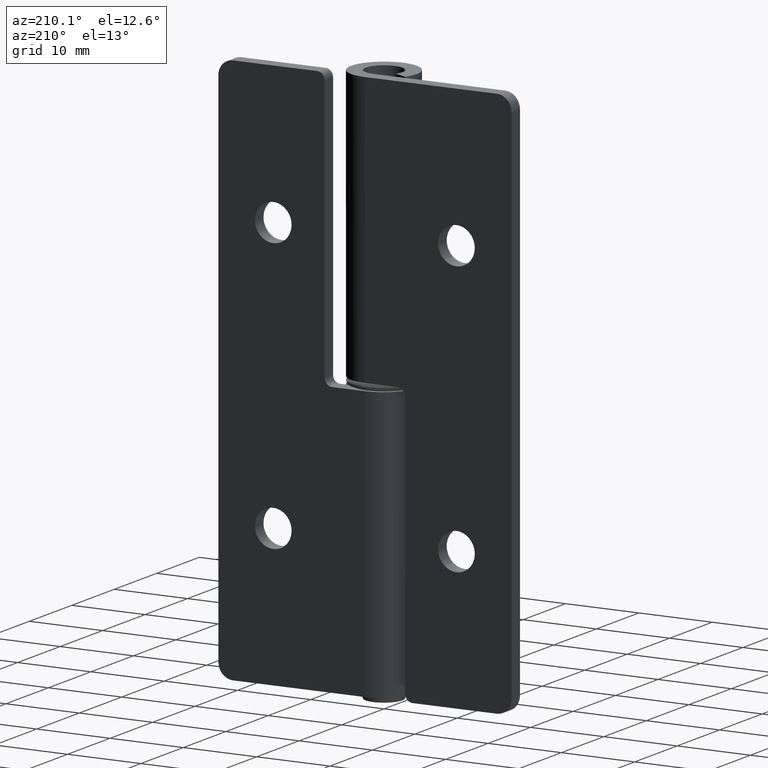
[diagram: clean part render]
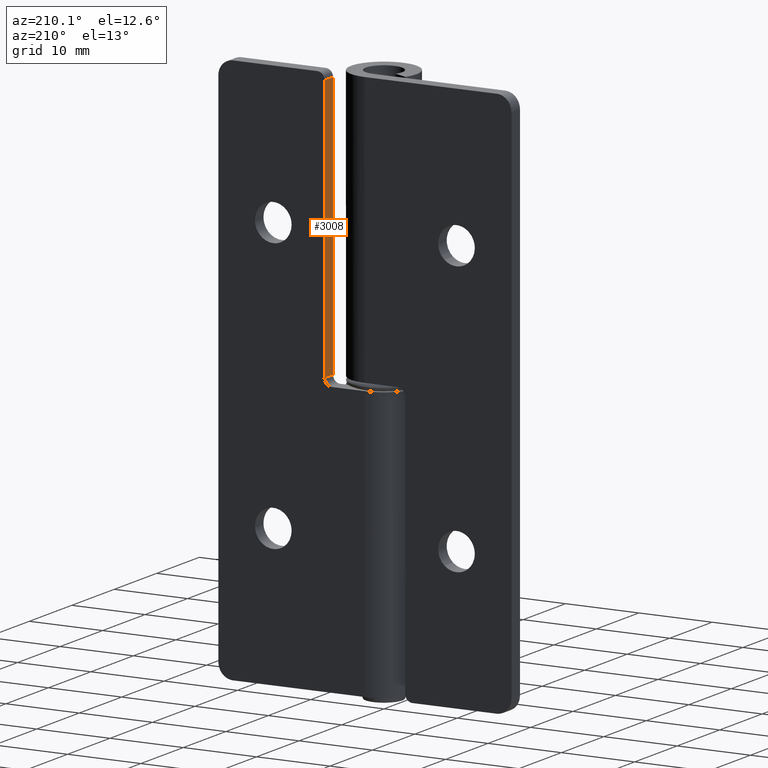
[diagram: same view with one face highlighted and labeled with its STEP entity id]
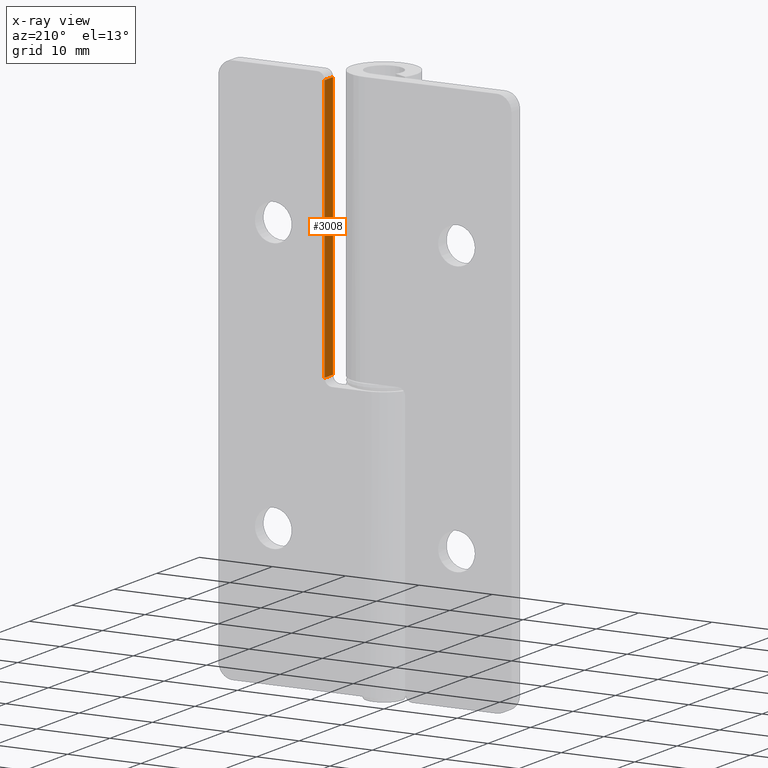
[diagram: x-ray of the same camera — body ghosted, the highlighted face saturated]
A machine part, auxiliary view. The second image highlights one B-rep face of the part: STEP entity #3008.
The next image is the same camera in x-ray: the body ghosted, the highlighted face saturated — about 0% of this face is hidden behind the body in this view.
In plain terms, the highlighted face is a freeform B-spline surface patch.
Its self-contained STEP definition (entity closure, byte-faithful):
#2662=CARTESIAN_POINT('',(5.500000000000000,2.499999999982290,74.0));
#2663=VERTEX_POINT('',#2662);
#2677=CARTESIAN_POINT('',(5.500000000000000,2.499999999982290,38.0));
#2678=VERTEX_POINT('',#2677);
#2679=CARTESIAN_POINT('',(5.500000000000000,2.499999999982290,38.0));
#2680=CARTESIAN_POINT('',(5.500000000000000,2.499999999982290,74.0));
#2681=QUASI_UNIFORM_CURVE('',1,(#2679,#2680),.UNSPECIFIED.,.F.,.U.);
#2682=EDGE_CURVE('',#2678,#2663,#2681,.T.);
#2777=CARTESIAN_POINT('',(5.500000000000000,4.499999999999915,38.0));
#2778=VERTEX_POINT('',#2777);
#2779=CARTESIAN_POINT('',(5.500000000000000,4.499999999999915,38.0));
#2780=CARTESIAN_POINT('',(5.500000000000000,2.499999999982290,38.0));
#2781=QUASI_UNIFORM_CURVE('',1,(#2779,#2780),.UNSPECIFIED.,.F.,.U.);
#2782=EDGE_CURVE('',#2778,#2678,#2781,.T.);
#2829=CARTESIAN_POINT('',(5.500000000000000,4.499999999999915,74.0));
#2830=VERTEX_POINT('',#2829);
#2844=CARTESIAN_POINT('',(5.500000000000000,2.499999999982290,74.0));
#2845=CARTESIAN_POINT('',(5.500000000000000,4.499999999999915,74.0));
#2846=QUASI_UNIFORM_CURVE('',1,(#2844,#2845),.UNSPECIFIED.,.F.,.U.);
#2847=EDGE_CURVE('',#2663,#2830,#2846,.T.);
#2993=CARTESIAN_POINT('',(5.500000000000000,2.400100003857798,75.798199930225039));
#2994=CARTESIAN_POINT('',(5.500000000000000,2.400100003857798,36.201799104179742));
#2995=CARTESIAN_POINT('',(5.500000000000000,4.599900049768587,75.798199930225039));
#2996=CARTESIAN_POINT('',(5.500000000000000,4.599900049768587,36.201799104179742));
#2997=B_SPLINE_SURFACE_WITH_KNOTS('',1,1,((#2993,#2995),(#2994,#2996)),.UNSPECIFIED.,.F.,.F.,.U.,(2,2),(2,2),(0.0,39.596400826045297),(0.0,2.199800045910790),.UNSPECIFIED.);
#2998=ORIENTED_EDGE('',*,*,#2682,.T.);
#2999=ORIENTED_EDGE('',*,*,#2847,.T.);
#3000=CARTESIAN_POINT('',(5.500000000000000,4.499999999999915,74.0));
#3001=CARTESIAN_POINT('',(5.500000000000000,4.499999999999915,38.0));
#3002=QUASI_UNIFORM_CURVE('',1,(#3000,#3001),.UNSPECIFIED.,.F.,.U.);
#3003=EDGE_CURVE('',#2830,#2778,#3002,.T.);
#3004=ORIENTED_EDGE('',*,*,#3003,.T.);
#3005=ORIENTED_EDGE('',*,*,#2782,.T.);
#3006=EDGE_LOOP('',(#2998,#2999,#3004,#3005));
#3007=FACE_OUTER_BOUND('',#3006,.T.);
#3008=ADVANCED_FACE('',(#3007),#2997,.F.);